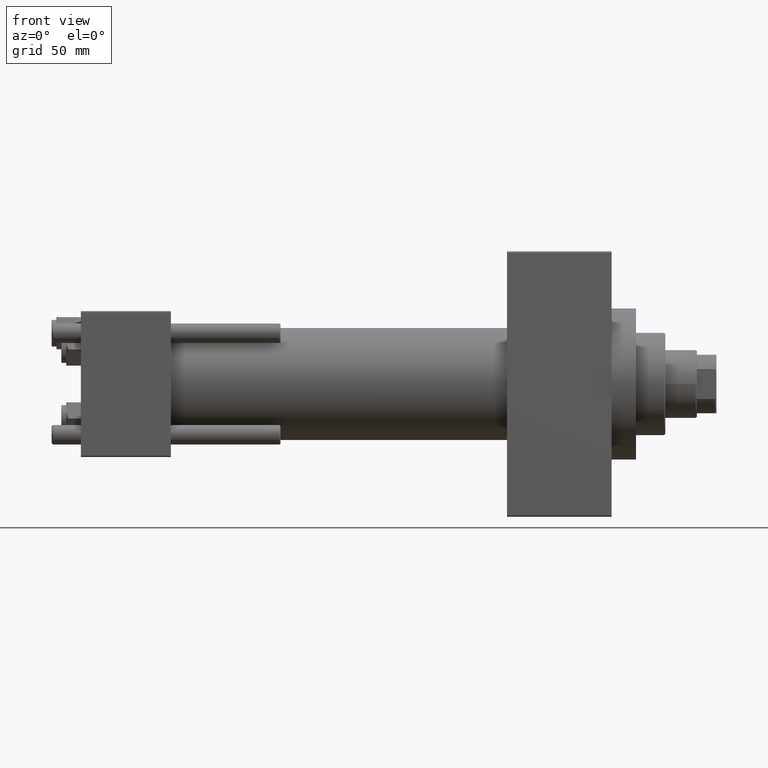
[diagram: clean part render]
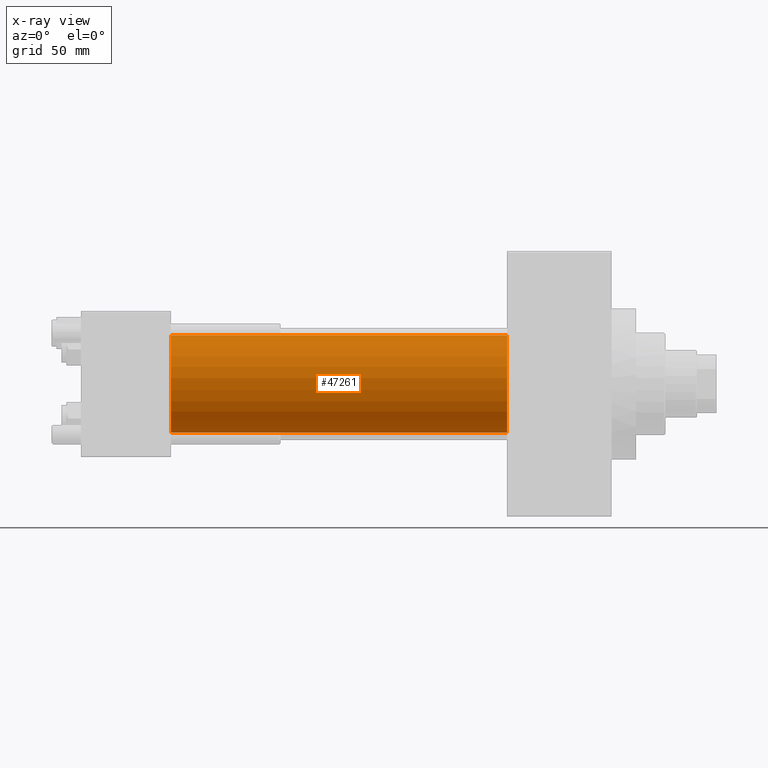
[diagram: x-ray — body ghosted, one internal face saturated and labeled with its STEP entity id]
A machine part, front view, then the same camera in x-ray: the body is ghosted and one INTERNAL B-rep face — a face not visible from any outside direction — is saturated and labeled: STEP entity #47261.
In plain terms, the highlighted cylindrical surface (partial cylindrical patch) has radius 20 mm, axis along (-1, -0, -0).
Its self-contained STEP definition (entity closure, byte-faithful):
#2024 = DIRECTION ( 'NONE',  ( 0.000000000000000000, 0.000000000000000000, -1.000000000000000000 ) ) ;
#5373 = CARTESIAN_POINT ( 'NONE',  ( 37.00000000000000000, -1.527916156705042519E-16, -20.00000000000000000 ) ) ;
#5546 = DIRECTION ( 'NONE',  ( 1.000000000000000000, 0.000000000000000000, 0.000000000000000000 ) ) ;
#5712 = VERTEX_POINT ( 'NONE', #29958 ) ;
#6841 = CIRCLE ( 'NONE', #27093, 20.00000000000000000 ) ;
#7729 = DIRECTION ( 'NONE',  ( -1.000000000000000000, -0.000000000000000000, -0.000000000000000000 ) ) ;
#8187 = ORIENTED_EDGE ( 'NONE', *, *, #45530, .F. ) ;
#8808 = CARTESIAN_POINT ( 'NONE',  ( 175.0000000000000284, -1.527916156705042519E-16, -20.00000000000000000 ) ) ;
#9367 = CARTESIAN_POINT ( 'NONE',  ( 175.0000000000000284, -2.602085213965210642E-15, 0.000000000000000000 ) ) ;
#10728 = CARTESIAN_POINT ( 'NONE',  ( 175.0000000000000284, -2.602085213965210642E-15, 0.000000000000000000 ) ) ;
#12388 = DIRECTION ( 'NONE',  ( 0.000000000000000000, 0.000000000000000000, -1.000000000000000000 ) ) ;
#14566 = EDGE_CURVE ( 'NONE', #5712, #25134, #45645, .T. ) ;
#14796 = CARTESIAN_POINT ( 'NONE',  ( 175.0000000000000284, -2.602085213965210642E-15, 20.00000000000000000 ) ) ;
#15558 = EDGE_CURVE ( 'NONE', #30957, #5712, #29856, .T. ) ;
#16772 = CARTESIAN_POINT ( 'NONE',  ( 37.00000000000000000, -2.602085213965210642E-15, 0.000000000000000000 ) ) ;
#18522 = DIRECTION ( 'NONE',  ( -1.000000000000000000, -0.000000000000000000, -0.000000000000000000 ) ) ;
#20267 = AXIS2_PLACEMENT_3D ( 'NONE', #10728, #18522, #44871 ) ;
#22670 = FACE_OUTER_BOUND ( 'NONE', #38332, .T. ) ;
#23306 = CARTESIAN_POINT ( 'NONE',  ( 37.00000000000000000, -2.602085213965210642E-15, 20.00000000000000000 ) ) ;
#24234 = DIRECTION ( 'NONE',  ( 1.000000000000000000, 0.000000000000000000, 0.000000000000000000 ) ) ;
#24617 = VERTEX_POINT ( 'NONE', #23306 ) ;
#25134 = VERTEX_POINT ( 'NONE', #5373 ) ;
#26731 = LINE ( 'NONE', #14796, #41233 ) ;
#27093 = AXIS2_PLACEMENT_3D ( 'NONE', #16772, #5546, #12388 ) ;
#28167 = CARTESIAN_POINT ( 'NONE',  ( 175.0000000000000284, -2.602085213965210642E-15, 20.00000000000000000 ) ) ;
#28382 = ORIENTED_EDGE ( 'NONE', *, *, #39251, .F. ) ;
#29856 = CIRCLE ( 'NONE', #44669, 20.00000000000000000 ) ;
#29958 = CARTESIAN_POINT ( 'NONE',  ( 175.0000000000000284, -1.527916156705042519E-16, -20.00000000000000000 ) ) ;
#30957 = VERTEX_POINT ( 'NONE', #28167 ) ;
#33929 = DIRECTION ( 'NONE',  ( -1.000000000000000000, -0.000000000000000000, -0.000000000000000000 ) ) ;
#37041 = CYLINDRICAL_SURFACE ( 'NONE', #20267, 20.00000000000000000 ) ;
#38332 = EDGE_LOOP ( 'NONE', ( #42056, #44759, #28382, #8187 ) ) ;
#38489 = VECTOR ( 'NONE', #33929, 1000.000000000000000 ) ;
#39251 = EDGE_CURVE ( 'NONE', #24617, #25134, #6841, .T. ) ;
#41233 = VECTOR ( 'NONE', #7729, 1000.000000000000000 ) ;
#42056 = ORIENTED_EDGE ( 'NONE', *, *, #15558, .T. ) ;
#44669 = AXIS2_PLACEMENT_3D ( 'NONE', #9367, #24234, #2024 ) ;
#44759 = ORIENTED_EDGE ( 'NONE', *, *, #14566, .T. ) ;
#44871 = DIRECTION ( 'NONE',  ( 0.000000000000000000, 0.000000000000000000, 1.000000000000000000 ) ) ;
#45530 = EDGE_CURVE ( 'NONE', #30957, #24617, #26731, .T. ) ;
#45645 = LINE ( 'NONE', #8808, #38489 ) ;
#47261 = ADVANCED_FACE ( 'NONE', ( #22670 ), #37041, .F. ) ;